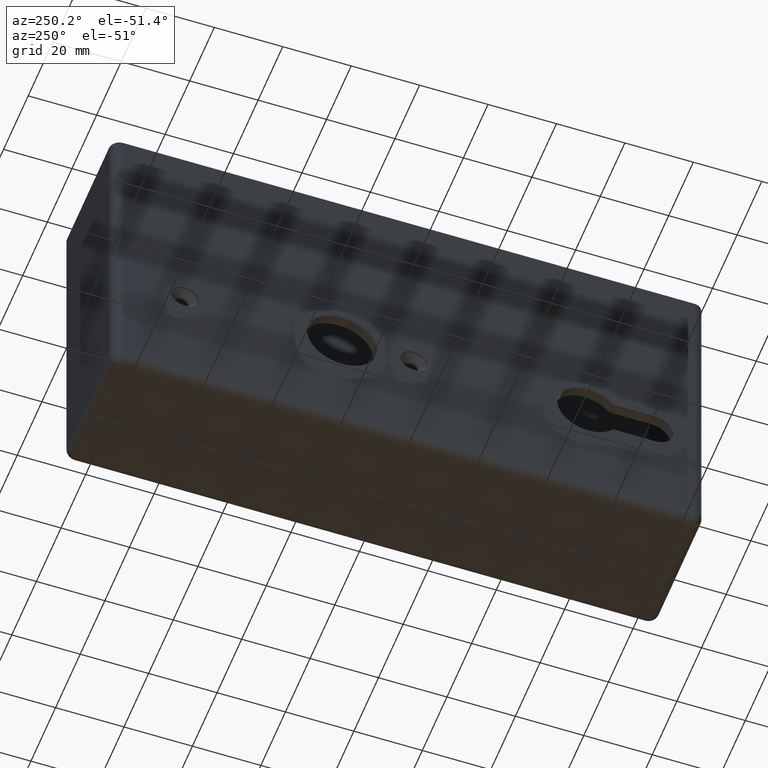
[diagram: clean part render]
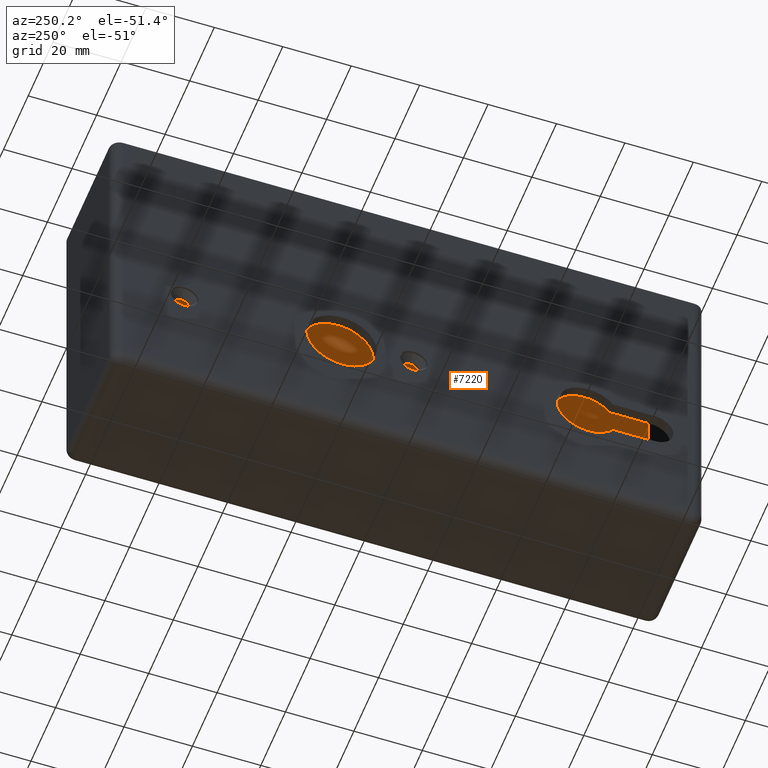
[diagram: same view with one face highlighted and labeled with its STEP entity id]
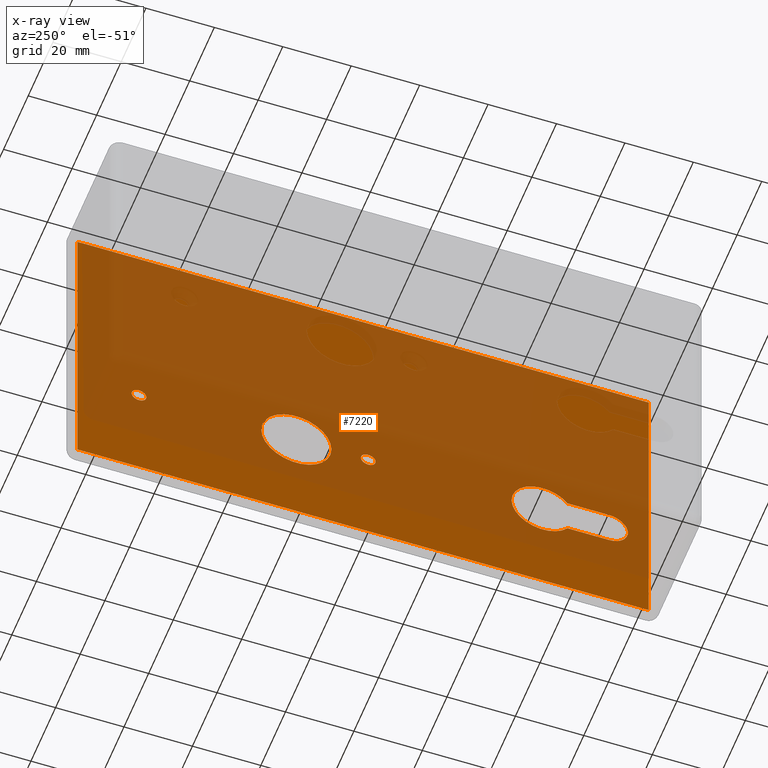
[diagram: x-ray of the same camera — body ghosted, the highlighted face saturated]
A machine part, auxiliary view. The second image highlights one B-rep face of the part: STEP entity #7220.
The next image is the same camera in x-ray: the body ghosted, the highlighted face saturated — about 79% of this face is hidden behind the body in this view.
In plain terms, the highlighted planar face has unit normal (-1, -0, 0).
Its self-contained STEP definition (entity closure, byte-faithful):
#10 = CARTESIAN_POINT ( 'NONE',  ( 16.99999999999999289, 86.50000000000001421, -7.250000000000013323 ) ) ;
#65 = CARTESIAN_POINT ( 'NONE',  ( 17.00000000000000711, -52.49999999999999289, -12.75000000000000178 ) ) ;
#111 = DIRECTION ( 'NONE',  ( 0.000000000000000000, -1.000000000000000000, 0.000000000000000000 ) ) ;
#167 = VECTOR ( 'NONE', #11072, 1000.000000000000000 ) ;
#296 = VERTEX_POINT ( 'NONE', #8617 ) ;
#311 = CARTESIAN_POINT ( 'NONE',  ( 17.00000000000000355, -1.499999999999993561, -12.75000000000000178 ) ) ;
#342 = FACE_BOUND ( 'NONE', #7838, .T. ) ;
#643 = FACE_BOUND ( 'NONE', #11602, .T. ) ;
#673 = CARTESIAN_POINT ( 'NONE',  ( 17.00000000000001421, -83.49999999999997158, -44.25000000000000000 ) ) ;
#736 = VERTEX_POINT ( 'NONE', #9747 ) ;
#1009 = EDGE_CURVE ( 'NONE', #11267, #11267, #5262, .T. ) ;
#1452 = ORIENTED_EDGE ( 'NONE', *, *, #10411, .F. ) ;
#1613 = FACE_BOUND ( 'NONE', #7119, .T. ) ;
#1693 = EDGE_CURVE ( 'NONE', #10802, #2850, #11614, .T. ) ;
#1765 = AXIS2_PLACEMENT_3D ( 'NONE', #311, #10427, #7380 ) ;
#2005 = ORIENTED_EDGE ( 'NONE', *, *, #2638, .T. ) ;
#2027 = CARTESIAN_POINT ( 'NONE',  ( 17.00000000000000355, 19.50000000000000711, -12.75000000000000178 ) ) ;
#2077 = CARTESIAN_POINT ( 'NONE',  ( 17.00000000000000355, -3.649999999999990141, -12.75000000000000178 ) ) ;
#2338 = LINE ( 'NONE', #4767, #6810 ) ;
#2481 = VERTEX_POINT ( 'NONE', #10944 ) ;
#2609 = DIRECTION ( 'NONE',  ( -1.000000000000000000, -1.203276399521484674E-16, 0.000000000000000000 ) ) ;
#2638 = EDGE_CURVE ( 'NONE', #2850, #12546, #2338, .T. ) ;
#2748 = DIRECTION ( 'NONE',  ( 1.203276399521484674E-16, -1.000000000000000000, -2.855471373747435790E-16 ) ) ;
#2771 = VECTOR ( 'NONE', #12279, 1000.000000000000000 ) ;
#2807 = VERTEX_POINT ( 'NONE', #8071 ) ;
#2850 = VERTEX_POINT ( 'NONE', #3014 ) ;
#3014 = CARTESIAN_POINT ( 'NONE',  ( 17.00000000000001421, -83.49999999999997158, 47.25000000000000000 ) ) ;
#3041 = LINE ( 'NONE', #12104, #167 ) ;
#3268 = ORIENTED_EDGE ( 'NONE', *, *, #1693, .T. ) ;
#3375 = FACE_BOUND ( 'NONE', #7813, .T. ) ;
#3400 = DIRECTION ( 'NONE',  ( 0.000000000000000000, 0.000000000000000000, 1.000000000000000000 ) ) ;
#3551 = CIRCLE ( 'NONE', #4672, 2.149999999999985256 ) ;
#3866 = DIRECTION ( 'NONE',  ( 0.000000000000000000, -1.000000000000000000, 0.000000000000000000 ) ) ;
#3873 = AXIS2_PLACEMENT_3D ( 'NONE', #65, #8340, #111 ) ;
#3931 = AXIS2_PLACEMENT_3D ( 'NONE', #2027, #9189, #3866 ) ;
#4123 = VECTOR ( 'NONE', #12861, 1000.000000000000000 ) ;
#4135 = ORIENTED_EDGE ( 'NONE', *, *, #5673, .F. ) ;
#4270 = CIRCLE ( 'NONE', #1765, 2.149999999999996358 ) ;
#4672 = AXIS2_PLACEMENT_3D ( 'NONE', #5952, #13086, #6941 ) ;
#4767 = CARTESIAN_POINT ( 'NONE',  ( 16.99999999999999289, 86.50000000000001421, 47.25000000000000000 ) ) ;
#4895 = ORIENTED_EDGE ( 'NONE', *, *, #12158, .F. ) ;
#5135 = CARTESIAN_POINT ( 'NONE',  ( 16.99999999999999645, 63.35000000000001563, -12.75000000000000178 ) ) ;
#5159 = FACE_OUTER_BOUND ( 'NONE', #9655, .T. ) ;
#5216 = VERTEX_POINT ( 'NONE', #9894 ) ;
#5262 = CIRCLE ( 'NONE', #3931, 10.24999999999998934 ) ;
#5620 = ORIENTED_EDGE ( 'NONE', *, *, #8579, .T. ) ;
#5673 = EDGE_CURVE ( 'NONE', #736, #12546, #6160, .T. ) ;
#5886 = CARTESIAN_POINT ( 'NONE',  ( 16.99999999999999289, 86.50000000000002842, -18.24999999999996092 ) ) ;
#5952 = CARTESIAN_POINT ( 'NONE',  ( 16.99999999999999645, 65.50000000000000000, -12.75000000000000178 ) ) ;
#6048 = CIRCLE ( 'NONE', #10779, 5.500000000000005329 ) ;
#6160 = LINE ( 'NONE', #9549, #12210 ) ;
#6346 = EDGE_CURVE ( 'NONE', #7250, #7250, #3551, .T. ) ;
#6468 = AXIS2_PLACEMENT_3D ( 'NONE', #10765, #2609, #9883 ) ;
#6767 = PLANE ( 'NONE',  #6468 ) ;
#6810 = VECTOR ( 'NONE', #8537, 1000.000000000000000 ) ;
#6941 = DIRECTION ( 'NONE',  ( 0.000000000000000000, -1.000000000000000000, 0.000000000000000000 ) ) ;
#6975 = LINE ( 'NONE', #5886, #8718 ) ;
#7078 = ORIENTED_EDGE ( 'NONE', *, *, #9607, .F. ) ;
#7119 = EDGE_LOOP ( 'NONE', ( #8157 ) ) ;
#7220 = ADVANCED_FACE ( 'NONE', ( #643, #3375, #342, #1613, #5159 ), #6767, .T. ) ;
#7250 = VERTEX_POINT ( 'NONE', #5135 ) ;
#7380 = DIRECTION ( 'NONE',  ( 0.000000000000000000, -1.000000000000000000, 0.000000000000000000 ) ) ;
#7409 = DIRECTION ( 'NONE',  ( 0.000000000000000000, -1.000000000000000000, 0.000000000000000000 ) ) ;
#7811 = CARTESIAN_POINT ( 'NONE',  ( 16.99999999999999289, 83.50000000000000000, 47.25000000000000000 ) ) ;
#7813 = EDGE_LOOP ( 'NONE', ( #7078 ) ) ;
#7838 = EDGE_LOOP ( 'NONE', ( #8502, #1452, #8630, #4895 ) ) ;
#8071 = CARTESIAN_POINT ( 'NONE',  ( 17.00000000000000711, -71.89999999999999147, -18.25000000000000355 ) ) ;
#8157 = ORIENTED_EDGE ( 'NONE', *, *, #1009, .F. ) ;
#8340 = DIRECTION ( 'NONE',  ( -1.000000000000000000, -1.203276399521484674E-16, 0.000000000000000000 ) ) ;
#8502 = ORIENTED_EDGE ( 'NONE', *, *, #10199, .F. ) ;
#8537 = DIRECTION ( 'NONE',  ( -1.203276399521484674E-16, 1.000000000000000000, -0.000000000000000000 ) ) ;
#8579 = EDGE_CURVE ( 'NONE', #736, #10802, #3041, .T. ) ;
#8617 = CARTESIAN_POINT ( 'NONE',  ( 17.00000000000000711, -59.74982758415673345, -7.250000000000000000 ) ) ;
#8630 = ORIENTED_EDGE ( 'NONE', *, *, #12885, .F. ) ;
#8718 = VECTOR ( 'NONE', #2748, 1000.000000000000000 ) ;
#9189 = DIRECTION ( 'NONE',  ( -1.000000000000000000, -1.203276399521484674E-16, 0.000000000000000000 ) ) ;
#9377 = CARTESIAN_POINT ( 'NONE',  ( 17.00000000000001421, -71.89999999999999147, -12.75000000000000178 ) ) ;
#9407 = ORIENTED_EDGE ( 'NONE', *, *, #6346, .F. ) ;
#9549 = CARTESIAN_POINT ( 'NONE',  ( 16.99999999999999289, 83.50000000000000000, 47.25000000000000000 ) ) ;
#9607 = EDGE_CURVE ( 'NONE', #12374, #12374, #4270, .T. ) ;
#9655 = EDGE_LOOP ( 'NONE', ( #2005, #4135, #5620, #3268 ) ) ;
#9747 = CARTESIAN_POINT ( 'NONE',  ( 16.99999999999999289, 83.50000000000000000, -44.25000000000000000 ) ) ;
#9840 = LINE ( 'NONE', #10, #2771 ) ;
#9883 = DIRECTION ( 'NONE',  ( 1.203276399521484674E-16, -1.000000000000000000, 0.000000000000000000 ) ) ;
#9894 = CARTESIAN_POINT ( 'NONE',  ( 17.00000000000001066, -59.74982758415672635, -18.25000000000000355 ) ) ;
#10199 = EDGE_CURVE ( 'NONE', #2807, #2481, #6048, .T. ) ;
#10411 = EDGE_CURVE ( 'NONE', #5216, #2807, #6975, .T. ) ;
#10427 = DIRECTION ( 'NONE',  ( -1.000000000000000000, -1.203276399521484674E-16, 0.000000000000000000 ) ) ;
#10765 = CARTESIAN_POINT ( 'NONE',  ( 16.99999999999999289, 86.50000000000001421, 47.25000000000000000 ) ) ;
#10779 = AXIS2_PLACEMENT_3D ( 'NONE', #9377, #12463, #7409 ) ;
#10802 = VERTEX_POINT ( 'NONE', #673 ) ;
#10944 = CARTESIAN_POINT ( 'NONE',  ( 17.00000000000000711, -71.89999999999999147, -7.249999999999999112 ) ) ;
#10987 = CARTESIAN_POINT ( 'NONE',  ( 17.00000000000001421, -83.49999999999997158, 47.25000000000000000 ) ) ;
#11072 = DIRECTION ( 'NONE',  ( 1.203276399521484674E-16, -1.000000000000000000, 0.000000000000000000 ) ) ;
#11267 = VERTEX_POINT ( 'NONE', #13232 ) ;
#11573 = CIRCLE ( 'NONE', #3873, 9.099999999999997868 ) ;
#11602 = EDGE_LOOP ( 'NONE', ( #9407 ) ) ;
#11614 = LINE ( 'NONE', #10987, #4123 ) ;
#12104 = CARTESIAN_POINT ( 'NONE',  ( 17.00000000000000355, 2.045569879186524513E-15, -44.25000000000000000 ) ) ;
#12158 = EDGE_CURVE ( 'NONE', #2481, #296, #9840, .T. ) ;
#12210 = VECTOR ( 'NONE', #3400, 1000.000000000000000 ) ;
#12279 = DIRECTION ( 'NONE',  ( -1.203276399521484674E-16, 1.000000000000000000, -7.138678434368589474E-17 ) ) ;
#12374 = VERTEX_POINT ( 'NONE', #2077 ) ;
#12463 = DIRECTION ( 'NONE',  ( -1.000000000000000000, -1.203276399521484674E-16, 0.000000000000000000 ) ) ;
#12546 = VERTEX_POINT ( 'NONE', #7811 ) ;
#12861 = DIRECTION ( 'NONE',  ( 0.000000000000000000, 0.000000000000000000, 1.000000000000000000 ) ) ;
#12885 = EDGE_CURVE ( 'NONE', #296, #5216, #11573, .T. ) ;
#13086 = DIRECTION ( 'NONE',  ( -1.000000000000000000, -1.203276399521484674E-16, 0.000000000000000000 ) ) ;
#13232 = CARTESIAN_POINT ( 'NONE',  ( 17.00000000000000355, 9.250000000000017764, -12.75000000000000178 ) ) ;